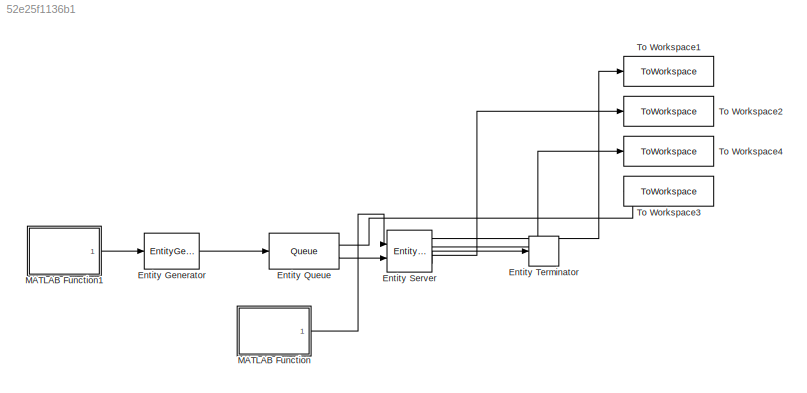
MODEL slx_52e25f1136b1
KIND model
CONFIG AbsTol = auto
CONFIG EnableMultiTasking = off
CONFIG FixedStep = auto
CONFIG MaxStep = auto
CONFIG MinStep = auto
CONFIG RelTol = 1e-3
CONFIG SampleTimeConstraint = Unconstrained
CONFIG SolverName = VariableStepAuto
CONFIG StartTime = 0.0
CONFIG StopTime = 500
BLOCK [EntityGenerator] Entity Generator
  AttributeInitialValue = 1|2|3
  AttributeName = Attribute1|data1|data2
  EntityType = Structured
  EntityTypeName = Entity
  InputPortMap = u1
  IntergenerationTimeAction = %dt = random('LogNormal',0,0.432,1,1);\n%rng(3,'twister');\ndt = lognrnd(0, 0.432);
  OutputPortMap = o3
  OutputPortMessageModes = m
  Period = dt
  Ports = [1, 1]
  TimeSource = Signal port
BLOCK [Queue] Entity Queue
  Capacity = 10000
  InputPortMap = u0
  InputPortMessageModes = m
  NumberEntitiesDeparted = on
  OutputPortMap = o0,o5
  OutputPortMessageModes = n,m
  Ports = [1, 2]
BLOCK [EntityServer] Entity Server
  AverageWait = on
  Capacity = 99999
  InputPortMap = u0,u2
  InputPortMessageModes = n,m
  NumberEntitiesDeparted = on
  NumberEntitiesInBlock = on
  OutputPortMap = o0,o1,o4,o9
  OutputPortMessageModes = n,n,n,m
  Ports = [2, 4]
  ServiceTimeAction = dt = random('wbl',79.29,1.077)+256.3485
  ServiceTimeSource = Signal port
BLOCK [EntityTerminator] Entity Terminator
  InputPortMap = u0
  InputPortMessageModes = m
  Ports = [1]
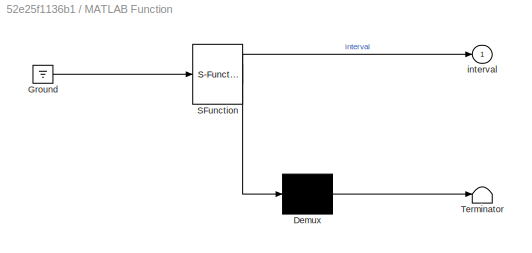
BLOCK [SubSystem] MATLAB Function
  ErrorFcn = Stateflow.Translate.translate
  PermitHierarchicalResolution = ExplicitOnly
  Ports = [0, 1]
  RequestExecContextInheritance = off
  SFBlockType = MATLAB Function
  TreatAsAtomicUnit = on
BLOCK [Demux] MATLAB Function/ Demux 
  Outputs = 1
  Ports = [1, 1]
BLOCK [Ground] MATLAB Function/ Ground 
BLOCK [S-Function] MATLAB Function/ SFunction 
  EnableBusSupport = on
  FunctionName = sf_sfun
  PortCounts = [1 2]
  Ports = [1, 2]
  SFcnIsStateOwnerBlock = off
  SFunctionDeploymentMode = off
  Tag = Stateflow S-Function 2
BLOCK [Terminator] MATLAB Function/ Terminator 
BLOCK [Outport] MATLAB Function/interval
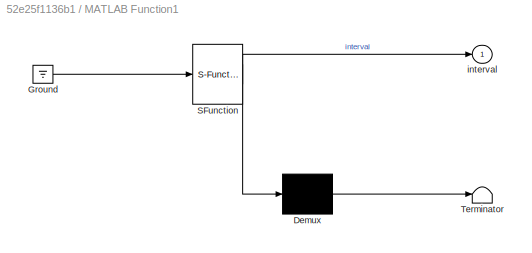
BLOCK [SubSystem] MATLAB Function1
  ErrorFcn = Stateflow.Translate.translate
  PermitHierarchicalResolution = ExplicitOnly
  Ports = [0, 1]
  RequestExecContextInheritance = off
  SFBlockType = MATLAB Function
  TreatAsAtomicUnit = on
BLOCK [Demux] MATLAB Function1/ Demux 
  Outputs = 1
  Ports = [1, 1]
BLOCK [Ground] MATLAB Function1/ Ground 
BLOCK [S-Function] MATLAB Function1/ SFunction 
  EnableBusSupport = on
  FunctionName = sf_sfun
  PortCounts = [1 2]
  Ports = [1, 2]
  SFcnIsStateOwnerBlock = off
  SFunctionDeploymentMode = off
  Tag = Stateflow S-Function 1
BLOCK [Terminator] MATLAB Function1/ Terminator 
BLOCK [Outport] MATLAB Function1/interval
BLOCK [ToWorkspace] To Workspace1
  FixptAsFi = on
  MaxDataPoints = inf
  Ports = [1]
  SampleTime = -1
  SaveFormat = Timeseries
  VariableName = NumberServed
BLOCK [ToWorkspace] To Workspace2
  FixptAsFi = on
  MaxDataPoints = inf
  Ports = [1]
  SampleTime = -1
  SaveFormat = Timeseries
  VariableName = AWT
BLOCK [ToWorkspace] To Workspace3
  FixptAsFi = on
  MaxDataPoints = inf
  Ports = [1]
  SampleTime = -1
  SaveFormat = Timeseries
  VariableName = ArrivalNumber
BLOCK [ToWorkspace] To Workspace4
  FixptAsFi = on
  MaxDataPoints = inf
  Ports = [1]
  SampleTime = -1
  SaveFormat = Timeseries
  VariableName = ServingNumber
LINE Entity Generator:1 -> Entity Queue:1
LINE Entity Queue:1 -> To Workspace3:1
LINE Entity Queue:2 -> Entity Server:2
LINE Entity Server:1 -> To Workspace1:1
LINE Entity Server:2 -> To Workspace4:1
LINE Entity Server:3 -> To Workspace2:1
LINE Entity Server:4 -> Entity Terminator:1
LINE MATLAB Function1:1 -> Entity Generator:1
LINE MATLAB Function:1 -> Entity Server:1
CHART MATLAB Function states=1 transitions=1
  STATE_LABEL 'eML_blk_kernel()'
  STATE_LABEL "SCRIPT:\nfunction interval = generateArrivalInterval()\n    persistent idx  % 保持随机数序列的索引位置\n    persistent comb % 保存随机数序列\n    \n    if isempty(idx)  % 如果索引为空，则生成随机数序列\n        dtser1 = random('wbl', 54.26, 1.12, 50000, 1) + 182.31;\n        dtser2 = -random('wbl', 54.26, 1.12, 50000, 1) + 182.31;\n        comb = vertcat(dtser1, dtser2);\n        comb(comb < 0) = []\n        idx = 1;  % 初始化索引位置\n    end\n\n   ...<+148ch>"
CHART MATLAB Function1 states=1 transitions=1
  STATE_LABEL 'eML_blk_kernel()'
  STATE_LABEL 'SCRIPT:\nfunction interval = generateArrivalInterval()\n    persistent idx  % 保持随机数序列的索引位置\n    persistent comb % 保存随机数序列\n    \n    if isempty(idx)  % 如果索引为空，则生成随机数序列\n        \n        comb = lognrnd(0, 0.432,10000,1)\n        idx = 1;  % 初始化索引位置\n    end\n\n    interval = comb(idx);  % 获取当前索引位置的时间间隔\n    idx = idx + 1;  % 更新索引位置\n\n    if idx > length(comb)  % 如果索引超出随机数序列长度，则重新开始\n        idx = 1;\n    end\nend'
CHART  states=0 transitions=0
CHART  states=0 transitions=0
